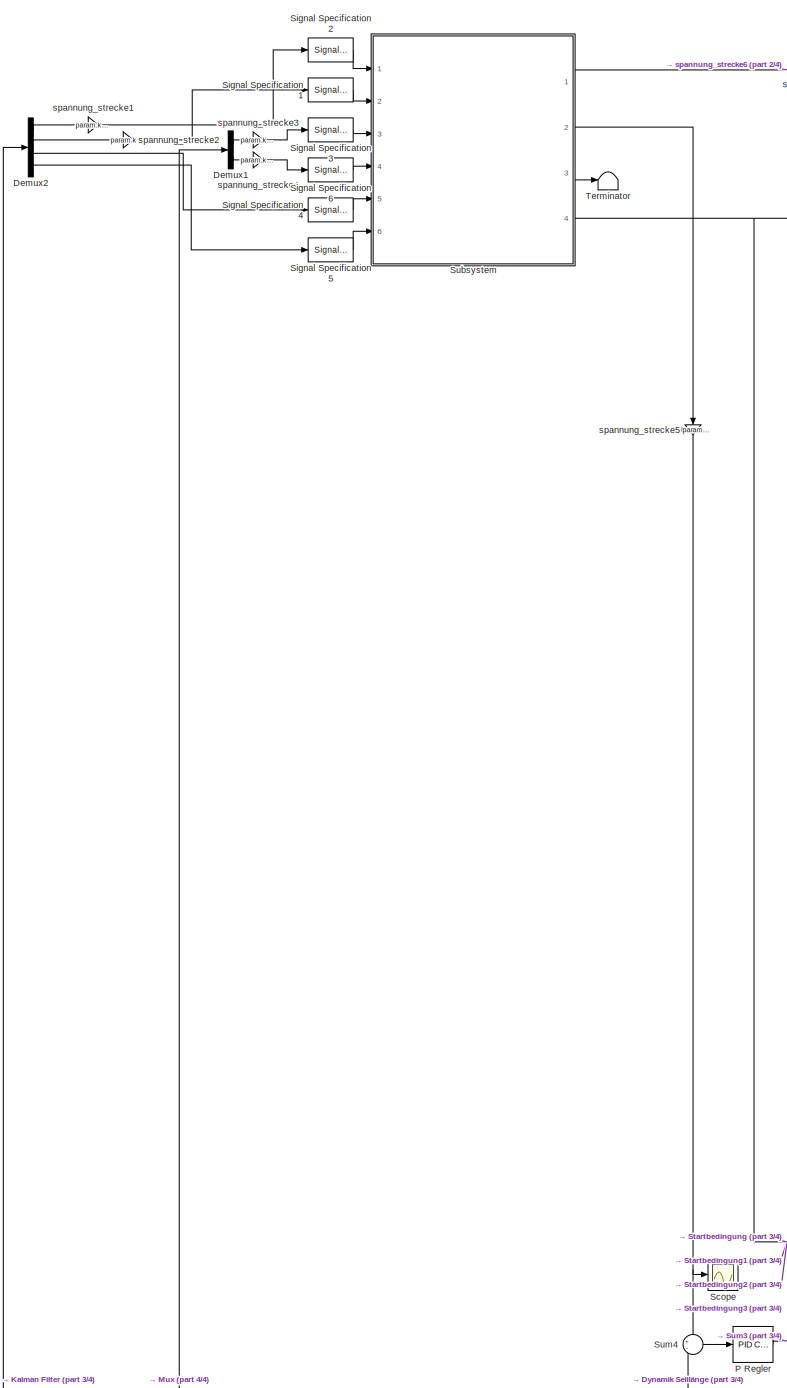
[diagram: root canvas - part 1/4, middle left region]
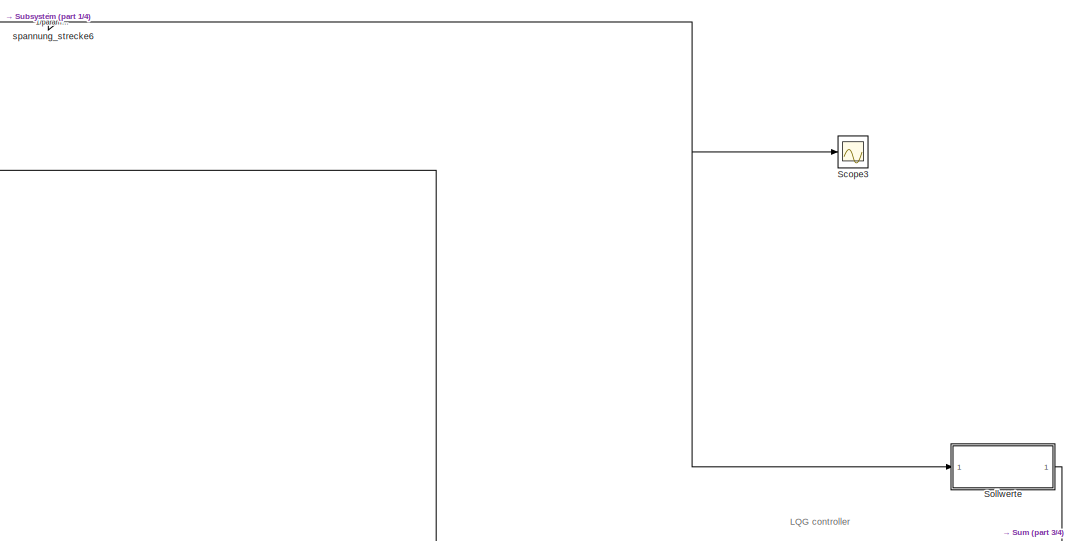
[diagram: root canvas - part 2/4, top center region]
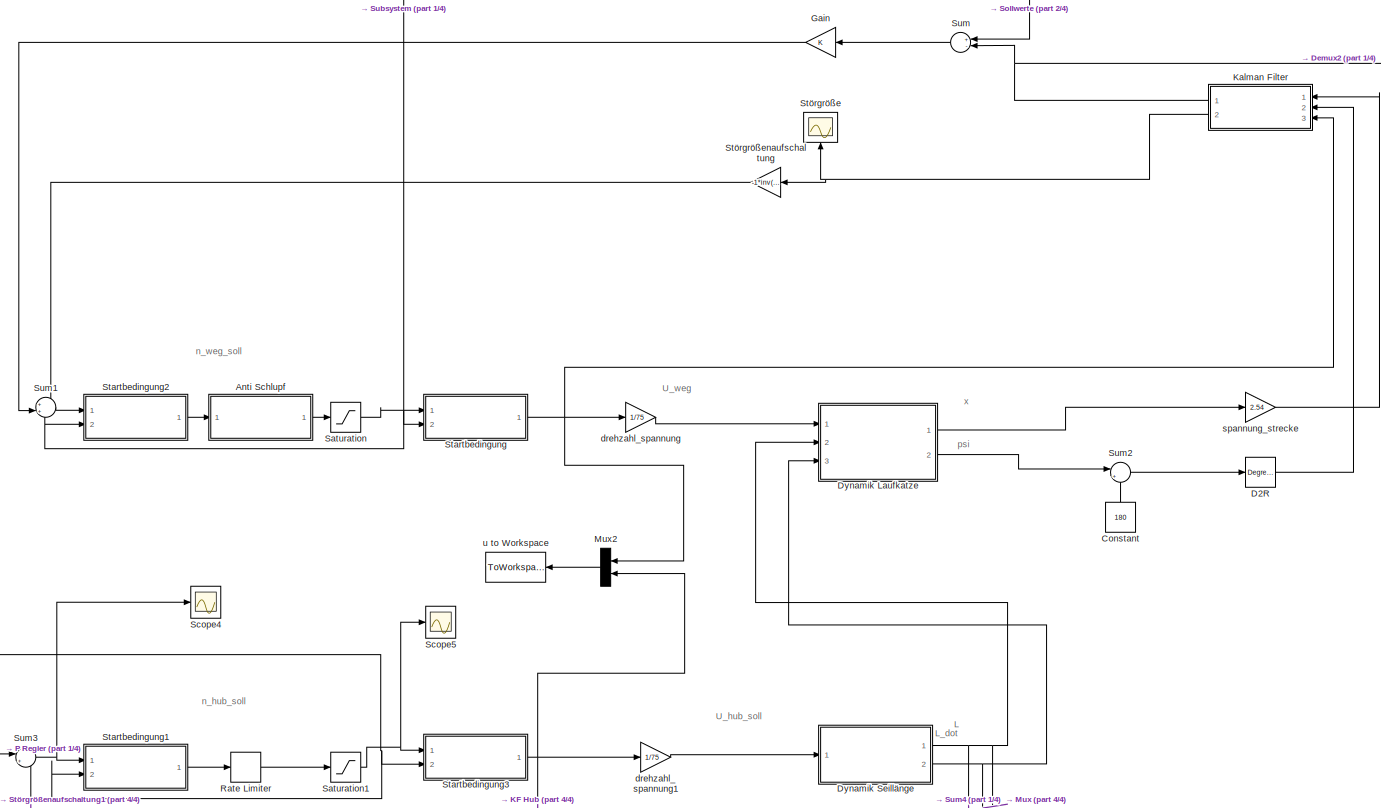
[diagram: root canvas - part 3/4, central region]
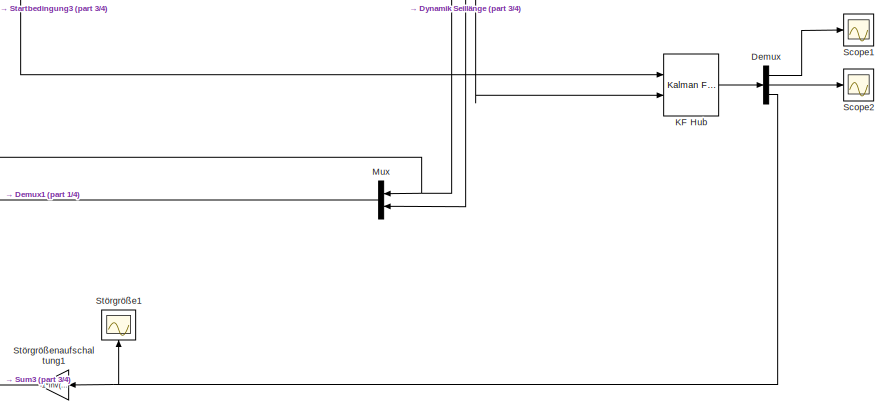
[diagram: root canvas - part 4/4, bottom right region]
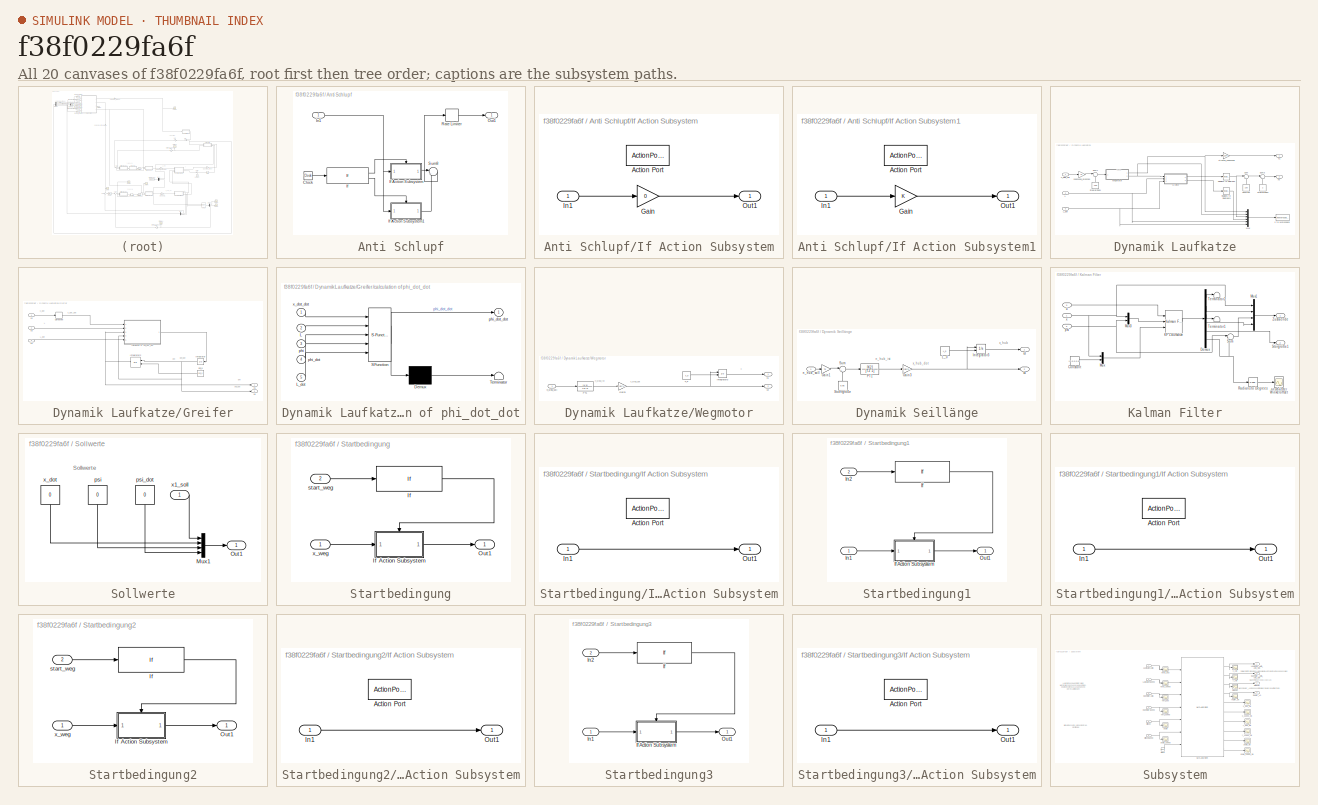
[diagram: thumbnail index - all 20 canvases of the model, root first then tree order]
MODEL slx_f38f0229fa6f
KIND model
CONFIG AbsTol = auto
CONFIG EnableMultiTasking = off
CONFIG FixedStep = auto
CONFIG MaxStep = auto
CONFIG MinStep = auto
CONFIG RelTol = 1e-3
CONFIG SampleTimeConstraint = Unconstrained
CONFIG Solver = VariableStepAuto
CONFIG SolverName = VariableStepAuto
CONFIG StartTime = 0.0
CONFIG StopTime = 120
BLOCK [SubSystem] Anti Schlupf
  Ports = [1, 1]
  RequestExecContextInheritance = off
  Variant = off
BLOCK [Clock] Anti Schlupf/Clock
BLOCK [If] Anti Schlupf/If
  IfExpression = u1 < 0.01
  Ports = [1, 2]
BLOCK [SubSystem] Anti Schlupf/If Action Subsystem
  Ports = [1, 1, 0, 0, 0, 0, 0, 1]
  RequestExecContextInheritance = off
  TreatAsAtomicUnit = on
  Variant = off
BLOCK [ActionPort] Anti Schlupf/If Action Subsystem/Action Port
  ActionType = then
BLOCK [Gain] Anti Schlupf/If Action Subsystem/Gain
  Gain = 0
  OutDataTypeStr = Inherit: Inherit via internal rule
  ParamDataTypeStr = Inherit: Inherit via internal rule
  SaturateOnIntegerOverflow = off
BLOCK [Inport] Anti Schlupf/If Action Subsystem/In1
  IconDisplay = Port number
BLOCK [Outport] Anti Schlupf/If Action Subsystem/Out1
  IconDisplay = Port number
BLOCK [SubSystem] Anti Schlupf/If Action Subsystem1
  Ports = [1, 1, 0, 0, 0, 0, 0, 1]
  RequestExecContextInheritance = off
  TreatAsAtomicUnit = on
  Variant = off
BLOCK [ActionPort] Anti Schlupf/If Action Subsystem1/Action Port
  ActionType = else
BLOCK [Gain] Anti Schlupf/If Action Subsystem1/Gain
  OutDataTypeStr = Inherit: Inherit via internal rule
  ParamDataTypeStr = Inherit: Inherit via internal rule
  SaturateOnIntegerOverflow = off
BLOCK [Inport] Anti Schlupf/If Action Subsystem1/In1
  IconDisplay = Port number
BLOCK [Outport] Anti Schlupf/If Action Subsystem1/Out1
  IconDisplay = Port number
BLOCK [Inport] Anti Schlupf/In1
  IconDisplay = Port number
BLOCK [Outport] Anti Schlupf/Out1
  IconDisplay = Port number
BLOCK [RateLimiter] Anti Schlupf/Rate Limiter
  FallingSlewLimit = -9.57
  RisingSlewLimit = 9.57
  SampleTimeMode = inherited
BLOCK [Sum] Anti Schlupf/Sum8
  IconShape = round
  InputSameDT = off
  Inputs = |++
  OutDataTypeStr = Inherit: Inherit via internal rule
  Ports = [2, 1]
  SaturateOnIntegerOverflow = off
BLOCK [Constant] Constant
  SampleTime = -1
  Value = 180
BLOCK [Reference] D2R  REF=simulink_extras/Transformations/Degrees to
Radians
  Ports = [1, 1]
  SourceBlock = simulink_extras/Transformations/Degrees to\nRadians
  SourceType = DegreesToRadians
BLOCK [Demux] Demux
  DisplayOption = bar
  Outputs = 3
  Ports = [1, 3]
BLOCK [Demux] Demux1
  DisplayOption = bar
  Outputs = 2
  Ports = [1, 2]
BLOCK [Demux] Demux2
  DisplayOption = bar
  Ports = [1, 4]
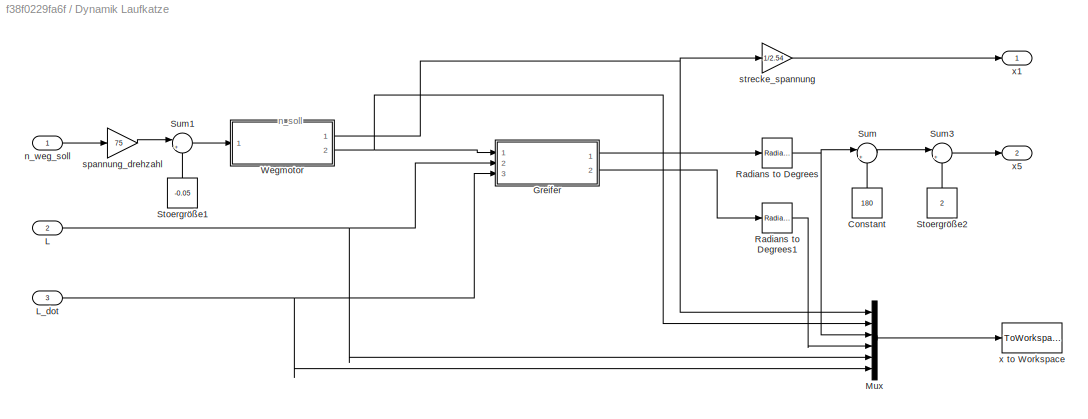
BLOCK [SubSystem] Dynamik Laufkatze
  Ports = [3, 2]
  RequestExecContextInheritance = off
  Variant = off
BLOCK [Constant] Dynamik Laufkatze/Constant
  SampleTime = -1
  Value = 180
BLOCK [SubSystem] Dynamik Laufkatze/Greifer
  Ports = [3, 2]
  RequestExecContextInheritance = off
  Variant = off
BLOCK [Derivative] Dynamik Laufkatze/Greifer/Derivative
BLOCK [Integrator] Dynamik Laufkatze/Greifer/Integrator
  Ports = [1, 1]
BLOCK [Integrator] Dynamik Laufkatze/Greifer/Integrator2
  InitialConditionSource = external
  Ports = [2, 1]
BLOCK [SubSystem] Dynamik Laufkatze/Greifer/calculation of phi_dot_dot
  ErrorFcn = Stateflow.Translate.translate
  PermitHierarchicalResolution = ExplicitOnly
  Ports = [5, 1]
  RequestExecContextInheritance = off
  SFBlockType = MATLAB Function
  TreatAsAtomicUnit = on
  Variant = off
BLOCK [Demux] Dynamik Laufkatze/Greifer/calculation of phi_dot_dot/ Demux 
  DisplayOption = bar
  Outputs = 1
  Ports = [1, 1]
BLOCK [S-Function] Dynamik Laufkatze/Greifer/calculation of phi_dot_dot/ SFunction 
  EnableBusSupport = on
  FunctionName = sf_sfun
  PortCounts = [5 2]
  Ports = [5, 2]
  SFcnIsStateOwnerBlock = off
  SFunctionDeploymentMode = off
  Tag = Stateflow S-Function Riccati_Simulation 2
BLOCK [Terminator] Dynamik Laufkatze/Greifer/calculation of phi_dot_dot/ Terminator 
BLOCK [Inport] Dynamik Laufkatze/Greifer/calculation of phi_dot_dot/L
  IconDisplay = Port number
  Port = 2
BLOCK [Inport] Dynamik Laufkatze/Greifer/calculation of phi_dot_dot/L_dot
  IconDisplay = Port number
  Port = 5
BLOCK [Inport] Dynamik Laufkatze/Greifer/calculation of phi_dot_dot/phi
  IconDisplay = Port number
  Port = 3
BLOCK [Inport] Dynamik Laufkatze/Greifer/calculation of phi_dot_dot/phi_dot
  IconDisplay = Port number
  Port = 4
BLOCK [Outport] Dynamik Laufkatze/Greifer/calculation of phi_dot_dot/phi_dot_dot
  IconDisplay = Port number
BLOCK [Inport] Dynamik Laufkatze/Greifer/calculation of phi_dot_dot/x_dot_dot
  IconDisplay = Port number
BLOCK [Constant] Dynamik Laufkatze/Greifer/phi_0
  SampleTime = -1
  Value = phi_0
BLOCK [Inport] Dynamik Laufkatze/Greifer/x2
  IconDisplay = Port number
BLOCK [Inport] Dynamik Laufkatze/Greifer/x3
  IconDisplay = Port number
  Port = 2
BLOCK [Inport] Dynamik Laufkatze/Greifer/x4
  IconDisplay = Port number
  Port = 3
BLOCK [Outport] Dynamik Laufkatze/Greifer/x5
  IconDisplay = Port number
BLOCK [Outport] Dynamik Laufkatze/Greifer/x6
  IconDisplay = Port number
  Port = 2
BLOCK [Inport] Dynamik Laufkatze/L
  IconDisplay = Port number
  Port = 2
BLOCK [Inport] Dynamik Laufkatze/L_dot
  IconDisplay = Port number
  Port = 3
BLOCK [Mux] Dynamik Laufkatze/Mux
  DisplayOption = bar
  Inputs = 6
  Ports = [6, 1]
BLOCK [Reference] Dynamik Laufkatze/Radians to Degrees  REF=simulink_extras/Transformations/Radians
to Degrees
  Ports = [1, 1]
  SourceBlock = simulink_extras/Transformations/Radians\nto Degrees
  SourceType = RadiansToDegrees
BLOCK [Reference] Dynamik Laufkatze/Radians to Degrees1  REF=simulink_extras/Transformations/Radians
to Degrees
  Ports = [1, 1]
  SourceBlock = simulink_extras/Transformations/Radians\nto Degrees
  SourceType = RadiansToDegrees
BLOCK [Constant] Dynamik Laufkatze/Stoergröße1
  SampleTime = -1
  Value = -0.05
BLOCK [Constant] Dynamik Laufkatze/Stoergröße2
  SampleTime = -1
  Value = 2
BLOCK [Sum] Dynamik Laufkatze/Sum
  IconShape = round
  InputSameDT = off
  Inputs = |++
  OutDataTypeStr = Inherit: Inherit via internal rule
  Ports = [2, 1]
  SaturateOnIntegerOverflow = off
BLOCK [Sum] Dynamik Laufkatze/Sum1
  IconShape = round
  InputSameDT = off
  Inputs = |++
  OutDataTypeStr = Inherit: Inherit via internal rule
  Ports = [2, 1]
  SaturateOnIntegerOverflow = off
BLOCK [Sum] Dynamik Laufkatze/Sum3
  IconShape = round
  InputSameDT = off
  Inputs = |++
  OutDataTypeStr = Inherit: Inherit via internal rule
  Ports = [2, 1]
  SaturateOnIntegerOverflow = off
BLOCK [SubSystem] Dynamik Laufkatze/Wegmotor
  Ports = [1, 2]
  RequestExecContextInheritance = off
  Variant = off
BLOCK [Gain] Dynamik Laufkatze/Wegmotor/Gain3
  Gain = 2*pi*r1/ue1
  OutDataTypeStr = Inherit: Inherit via internal rule
  ParamDataTypeStr = Inherit: Inherit via internal rule
  SaturateOnIntegerOverflow = off
BLOCK [Integrator] Dynamik Laufkatze/Wegmotor/Integrator3
  InitialConditionSource = external
  Ports = [2, 1]
BLOCK [TransferFcn] Dynamik Laufkatze/Wegmotor/PT1
  Denominator = [T1 1]
  Numerator = [K1]
BLOCK [Inport] Dynamik Laufkatze/Wegmotor/n_weg_soll
  IconDisplay = Port number
BLOCK [Outport] Dynamik Laufkatze/Wegmotor/x1
  IconDisplay = Port number
BLOCK [Outport] Dynamik Laufkatze/Wegmotor/x2
  IconDisplay = Port number
  Port = 2
BLOCK [Constant] Dynamik Laufkatze/Wegmotor/x_0
  SampleTime = -1
  Value = x_0
BLOCK [Inport] Dynamik Laufkatze/n_weg_soll
  IconDisplay = Port number
BLOCK [Gain] Dynamik Laufkatze/spannung_drehzahl
  Gain = 75
  OutDataTypeStr = Inherit: Inherit via internal rule
  ParamDataTypeStr = Inherit: Inherit via internal rule
  SaturateOnIntegerOverflow = off
BLOCK [Gain] Dynamik Laufkatze/strecke_spannung
  Gain = 1/2.54
  OutDataTypeStr = Inherit: Inherit via internal rule
  ParamDataTypeStr = Inherit: Inherit via internal rule
  SaturateOnIntegerOverflow = off
BLOCK [ToWorkspace] Dynamik Laufkatze/x to Workspace
  MaxDataPoints = inf
  Ports = [1]
  SampleTime = -1
  Save2DSignal = 3-D array (concatenate along third dimension)
  VariableName = x
BLOCK [Outport] Dynamik Laufkatze/x1
  IconDisplay = Port number
BLOCK [Outport] Dynamik Laufkatze/x5
  IconDisplay = Port number
  Port = 2
BLOCK [SubSystem] Dynamik Seillänge
  Ports = [1, 2]
  RequestExecContextInheritance = off
  Variant = off
BLOCK [Gain] Dynamik Seillänge/Gain1
  Gain = 75
  OutDataTypeStr = Inherit: Inherit via internal rule
  ParamDataTypeStr = Inherit: Inherit via internal rule
  SaturateOnIntegerOverflow = off
BLOCK [Gain] Dynamik Seillänge/Gain3
  Gain = 2*pi*r2/ue2
  OutDataTypeStr = Inherit: Inherit via internal rule
  ParamDataTypeStr = Inherit: Inherit via internal rule
  SaturateOnIntegerOverflow = off
BLOCK [Integrator] Dynamik Seillänge/Integrator3
  InitialConditionSource = external
  Ports = [2, 1]
BLOCK [Constant] Dynamik Seillänge/L_0
  SampleTime = -1
  Value = L_0
BLOCK [TransferFcn] Dynamik Seillänge/PT1
  Denominator = [T2 1]
  Numerator = [K2]
BLOCK [Constant] Dynamik Seillänge/Stoergröße
  SampleTime = -1
  Value = 0.05
BLOCK [Sum] Dynamik Seillänge/Sum
  IconShape = round
  InputSameDT = off
  Inputs = |++
  OutDataTypeStr = Inherit: Inherit via internal rule
  Ports = [2, 1]
  SaturateOnIntegerOverflow = off
BLOCK [Inport] Dynamik Seillänge/n_hub_soll
  IconDisplay = Port number
BLOCK [Outport] Dynamik Seillänge/x3
  IconDisplay = Port number
BLOCK [Outport] Dynamik Seillänge/x4
  IconDisplay = Port number
  Port = 2
BLOCK [Gain] Gain
  Gain = K
  Multiplication = Matrix(K*u) (u vector)
  OutDataTypeStr = Inherit: Inherit via internal rule
  ParamDataTypeStr = Inherit: Inherit via internal rule
  SaturateOnIntegerOverflow = off
BLOCK [Reference] KF Hub  REF=ctrlSharedLib/Kalman Filter
  Ports = [2, 1]
  SourceBlock = ctrlSharedLib/Kalman Filter
  SourceType = ctrlKalmanFilter
BLOCK [SubSystem] Kalman Filter
  Ports = [3, 2]
  RequestExecContextInheritance = off
  Variant = off
BLOCK [Constant] Kalman Filter/Constant
  Value = [0 0 0 0 0]'
BLOCK [Demux] Kalman Filter/Demux
  DisplayOption = bar
  Outputs = 6
  Ports = [1, 6]
BLOCK [Reference] Kalman Filter/KF Laufkatze  REF=ctrlSharedLib/Kalman Filter
  Ports = [3, 1]
  SourceBlock = ctrlSharedLib/Kalman Filter
  SourceType = ctrlKalmanFilter
BLOCK [Mux] Kalman Filter/Mux
  DisplayOption = bar
  Inputs = 2
  Ports = [2, 1]
BLOCK [Mux] Kalman Filter/Mux1
  DisplayOption = bar
  Ports = [4, 1]
BLOCK [Mux] Kalman Filter/Mux3
  DisplayOption = bar
  Inputs = 2
  Ports = [2, 1]
BLOCK [Reference] Kalman Filter/Radians to Degrees  REF=simulink_extras/Transformations/Radians
to Degrees
  Ports = [1, 1]
  SourceBlock = simulink_extras/Transformations/Radians\nto Degrees
  SourceType = RadiansToDegrees
BLOCK [Outport] Kalman Filter/Störgröße1
  IconDisplay = Port number
  Port = 2
BLOCK [Sum] Kalman Filter/Sum
  IconShape = round
  InputSameDT = off
  Inputs = |+-
  OutDataTypeStr = Inherit: Inherit via internal rule
  Ports = [2, 1]
  SaturateOnIntegerOverflow = off
BLOCK [Terminator] Kalman Filter/Terminator1
BLOCK [Terminator] Kalman Filter/Terminator2
BLOCK [Outport] Kalman Filter/Zustaende
  IconDisplay = Port number
BLOCK [Scope] Kalman Filter/geschätzter Winkeloffset
  NumInputPorts = 1
  Ports = [1]
  ScopeSpecificationString = Simulink.scopes.TimeScopeBlockCfg('CurrentConfiguration', extmgr.ConfigurationSet(extmgr.Configuration('Core','General UI',true),extmgr.Configuration('Core','Source UI',true),extmgr.Configuration('Sources','WiredSimulink',true,'DataLoggingVariableName','ScopeData1'),extmgr.Configuration('Visuals','Time Domain',true,'SerializedDisplays',{struct('MinYLimReal','-0.34725','MaxYLimReal','3.12526','YLab...<+1429ch>
BLOCK [Inport] Kalman Filter/psi
  IconDisplay = Port number
  Port = 2
BLOCK [Inport] Kalman Filter/u
  IconDisplay = Port number
  Port = 3
BLOCK [Inport] Kalman Filter/x
  IconDisplay = Port number
BLOCK [Mux] Mux
  DisplayOption = bar
  Inputs = 2
  Ports = [2, 1]
BLOCK [Mux] Mux2
  DisplayOption = bar
  Inputs = 2
  Ports = [2, 1]
BLOCK [Reference] P Regler  REF=simulink/Continuous/PID Controller
  Ports = [1, 1]
  SourceBlock = simulink/Continuous/PID Controller
  SourceType = PID 1dof
BLOCK [RateLimiter] Rate Limiter
  FallingSlewLimit = -17
  RisingSlewLimit = 17
  SampleTimeMode = inherited
BLOCK [Saturate] Saturation
  InputPortMap = u0
  LowerLimit = -75
  Ports = [1, 1]
  UpperLimit = 75
BLOCK [Saturate] Saturation1
  InputPortMap = u0
  LowerLimit = -75
  Ports = [1, 1]
  UpperLimit = 75
BLOCK [Scope] Scope
  NumInputPorts = 1
  Ports = [1]
  ScopeSpecificationString = Simulink.scopes.TimeScopeBlockCfg('CurrentConfiguration', extmgr.ConfigurationSet(extmgr.Configuration('Core','General UI',true),extmgr.Configuration('Core','Source UI',true),extmgr.Configuration('Sources','WiredSimulink',true,'DataLoggingVariableName','ScopeData1'),extmgr.Configuration('Visuals','Time Domain',true,'SerializedDisplays',{struct('MinYLimReal','0.98778','MaxYLimReal','0.98916','YLabe...<+1445ch>
BLOCK [Scope] Scope1
  NumInputPorts = 1
  Ports = [1]
  ScopeSpecificationString = Simulink.scopes.TimeScopeBlockCfg('CurrentConfiguration', extmgr.ConfigurationSet(extmgr.Configuration('Core','General UI',true),extmgr.Configuration('Core','Source UI',true),extmgr.Configuration('Sources','WiredSimulink',true,'DataLoggingVariableName','ScopeData2'),extmgr.Configuration('Visuals','Time Domain',true,'SerializedDisplays',{struct('MinYLimReal','-0.22724','MaxYLimReal','0.83919','YLab...<+1417ch>
BLOCK [Scope] Scope2
  NumInputPorts = 1
  Ports = [1]
  ScopeSpecificationString = Simulink.scopes.TimeScopeBlockCfg('CurrentConfiguration', extmgr.ConfigurationSet(extmgr.Configuration('Core','General UI',true),extmgr.Configuration('Core','Source UI',true),extmgr.Configuration('Sources','WiredSimulink',true,'DataLoggingVariableName','ScopeData3'),extmgr.Configuration('Visuals','Time Domain',true,'SerializedDisplays',{struct('MinYLimReal','-0.44023','MaxYLimReal','0.46071','YLab...<+1419ch>
BLOCK [Scope] Scope3
  NumInputPorts = 1
  Ports = [1]
  ScopeSpecificationString = Simulink.scopes.TimeScopeBlockCfg('CurrentConfiguration', extmgr.ConfigurationSet(extmgr.Configuration('Core','General UI',true),extmgr.Configuration('Core','Source UI',true),extmgr.Configuration('Sources','WiredSimulink',true,'DataLoggingVariableName','ScopeData18'),extmgr.Configuration('Visuals','Time Domain',true,'SerializedDisplays',{struct('MinYLimReal','0.70992','MaxYLimReal','0.71003','YLab...<+1446ch>
BLOCK [Scope] Scope4
  NumInputPorts = 1
  Ports = [1]
  ScopeSpecificationString = Simulink.scopes.TimeScopeBlockCfg('CurrentConfiguration', extmgr.ConfigurationSet(extmgr.Configuration('Core','General UI',true),extmgr.Configuration('Core','Source UI',true),extmgr.Configuration('Sources','WiredSimulink',true,'DataLoggingVariableName','ScopeData19'),extmgr.Configuration('Visuals','Time Domain',true,'SerializedDisplays',{struct('MinYLimReal','-47.86745','MaxYLimReal','38.1764','YL...<+1421ch>
BLOCK [Scope] Scope5
  NumInputPorts = 1
  Ports = [1]
  ScopeSpecificationString = Simulink.scopes.TimeScopeBlockCfg('CurrentConfiguration', extmgr.ConfigurationSet(extmgr.Configuration('Core','General UI',true),extmgr.Configuration('Core','Source UI',true),extmgr.Configuration('Sources','WiredSimulink',true,'DataLoggingVariableName','ScopeData20'),extmgr.Configuration('Visuals','Time Domain',true,'SerializedDisplays',{struct('MinYLimReal','-26.57912','MaxYLimReal','23.27132','Y...<+1432ch>
BLOCK [SignalSpecification] Signal Specification1
  Dimensions = 1
BLOCK [SignalSpecification] Signal Specification2
  Dimensions = 1
BLOCK [SignalSpecification] Signal Specification3
  Dimensions = 1
BLOCK [SignalSpecification] Signal Specification4
  Dimensions = 1
BLOCK [SignalSpecification] Signal Specification5
  Dimensions = 1
BLOCK [SignalSpecification] Signal Specification6
  Dimensions = 1
BLOCK [SubSystem] Sollwerte
  Ports = [1, 1]
  RequestExecContextInheritance = off
  Variant = off
BLOCK [Mux] Sollwerte/Mux1
  DisplayOption = bar
  Ports = [4, 1]
BLOCK [Outport] Sollwerte/Out1
  IconDisplay = Port number
BLOCK [Constant] Sollwerte/psi
  Value = 0
BLOCK [Constant] Sollwerte/psi_dot
  Value = 0
BLOCK [Inport] Sollwerte/x1_soll
  IconDisplay = Port number
BLOCK [Constant] Sollwerte/x_dot
  Value = 0
BLOCK [SubSystem] Startbedingung
  Ports = [2, 1]
  RequestExecContextInheritance = off
  Variant = off
BLOCK [If] Startbedingung/If
  IfExpression = u1 == 1
  Ports = [1, 1]
  ShowElse = off
BLOCK [SubSystem] Startbedingung/If Action Subsystem
  Ports = [1, 1, 0, 0, 0, 0, 0, 1]
  RequestExecContextInheritance = off
  TreatAsAtomicUnit = on
  Variant = off
BLOCK [ActionPort] Startbedingung/If Action Subsystem/Action Port
  ActionType = then
BLOCK [Inport] Startbedingung/If Action Subsystem/In1
  IconDisplay = Port number
BLOCK [Outport] Startbedingung/If Action Subsystem/Out1
  IconDisplay = Port number
BLOCK [Outport] Startbedingung/Out1
  IconDisplay = Port number
BLOCK [Inport] Startbedingung/start_weg
  IconDisplay = Port number
  Port = 2
BLOCK [Inport] Startbedingung/x_weg
  IconDisplay = Port number
BLOCK [SubSystem] Startbedingung1
  Ports = [2, 1]
  RequestExecContextInheritance = off
  Variant = off
BLOCK [If] Startbedingung1/If
  IfExpression = u1 == 1
  Ports = [1, 1]
  ShowElse = off
BLOCK [SubSystem] Startbedingung1/If Action Subsystem
  Ports = [1, 1, 0, 0, 0, 0, 0, 1]
  RequestExecContextInheritance = off
  TreatAsAtomicUnit = on
  Variant = off
BLOCK [ActionPort] Startbedingung1/If Action Subsystem/Action Port
  ActionType = then
BLOCK [Inport] Startbedingung1/If Action Subsystem/In1
  IconDisplay = Port number
BLOCK [Outport] Startbedingung1/If Action Subsystem/Out1
  IconDisplay = Port number
BLOCK [Inport] Startbedingung1/In1
  IconDisplay = Port number
BLOCK [Inport] Startbedingung1/In2
  IconDisplay = Port number
  Port = 2
BLOCK [Outport] Startbedingung1/Out1
  IconDisplay = Port number
BLOCK [SubSystem] Startbedingung2
  Ports = [2, 1]
  RequestExecContextInheritance = off
  Variant = off
BLOCK [If] Startbedingung2/If
  IfExpression = u1 == 1
  Ports = [1, 1]
  ShowElse = off
BLOCK [SubSystem] Startbedingung2/If Action Subsystem
  Ports = [1, 1, 0, 0, 0, 0, 0, 1]
  RequestExecContextInheritance = off
  TreatAsAtomicUnit = on
  Variant = off
BLOCK [ActionPort] Startbedingung2/If Action Subsystem/Action Port
  ActionType = then
BLOCK [Inport] Startbedingung2/If Action Subsystem/In1
  IconDisplay = Port number
BLOCK [Outport] Startbedingung2/If Action Subsystem/Out1
  IconDisplay = Port number
BLOCK [Outport] Startbedingung2/Out1
  IconDisplay = Port number
BLOCK [Inport] Startbedingung2/start_weg
  IconDisplay = Port number
  Port = 2
BLOCK [Inport] Startbedingung2/x_weg
  IconDisplay = Port number
BLOCK [SubSystem] Startbedingung3
  Ports = [2, 1]
  RequestExecContextInheritance = off
  Variant = off
BLOCK [If] Startbedingung3/If
  IfExpression = u1 == 1
  Ports = [1, 1]
  ShowElse = off
BLOCK [SubSystem] Startbedingung3/If Action Subsystem
  Ports = [1, 1, 0, 0, 0, 0, 0, 1]
  RequestExecContextInheritance = off
  TreatAsAtomicUnit = on
  Variant = off
BLOCK [ActionPort] Startbedingung3/If Action Subsystem/Action Port
  ActionType = then
BLOCK [Inport] Startbedingung3/If Action Subsystem/In1
  IconDisplay = Port number
BLOCK [Outport] Startbedingung3/If Action Subsystem/Out1
  IconDisplay = Port number
BLOCK [Inport] Startbedingung3/In1
  IconDisplay = Port number
BLOCK [Inport] Startbedingung3/In2
  IconDisplay = Port number
  Port = 2
BLOCK [Outport] Startbedingung3/Out1
  IconDisplay = Port number
BLOCK [Scope] Störgröße
  NumInputPorts = 1
  Ports = [1]
  ScopeSpecificationString = Simulink.scopes.TimeScopeBlockCfg('CurrentConfiguration', extmgr.ConfigurationSet(extmgr.Configuration('Core','General UI',true),extmgr.Configuration('Core','Source UI',true),extmgr.Configuration('Sources','WiredSimulink',true,'DataLoggingVariableName','ScopeData1'),extmgr.Configuration('Visuals','Time Domain',true,'SerializedDisplays',{struct('MinYLimReal','-0.05812','MaxYLimReal','0.00646','YLab...<+1445ch>
BLOCK [Scope] Störgröße1
  NumInputPorts = 1
  Ports = [1]
  ScopeSpecificationString = Simulink.scopes.TimeScopeBlockCfg('CurrentConfiguration', extmgr.ConfigurationSet(extmgr.Configuration('Core','General UI',true),extmgr.Configuration('Core','Source UI',true),extmgr.Configuration('Sources','WiredSimulink',true,'DataLoggingVariableName','ScopeData1'),extmgr.Configuration('Visuals','Time Domain',true,'SerializedDisplays',{struct('MinYLimReal','-0.01442','MaxYLimReal','0.12974','YLab...<+1438ch>
BLOCK [Gain] Störgrößenaufschaltung
  Gain = -1*inv(B1'*B1)*B1'*E1
  Multiplication = Matrix(K*u)
  OutDataTypeStr = Inherit: Inherit via internal rule
  ParamDataTypeStr = Inherit: Inherit via internal rule
  SaturateOnIntegerOverflow = off
BLOCK [Gain] Störgrößenaufschaltung1
  Gain = -1*inv(B2'*B2)*B2'*E2
  Multiplication = Matrix(K*u)
  OutDataTypeStr = Inherit: Inherit via internal rule
  ParamDataTypeStr = Inherit: Inherit via internal rule
  SaturateOnIntegerOverflow = off
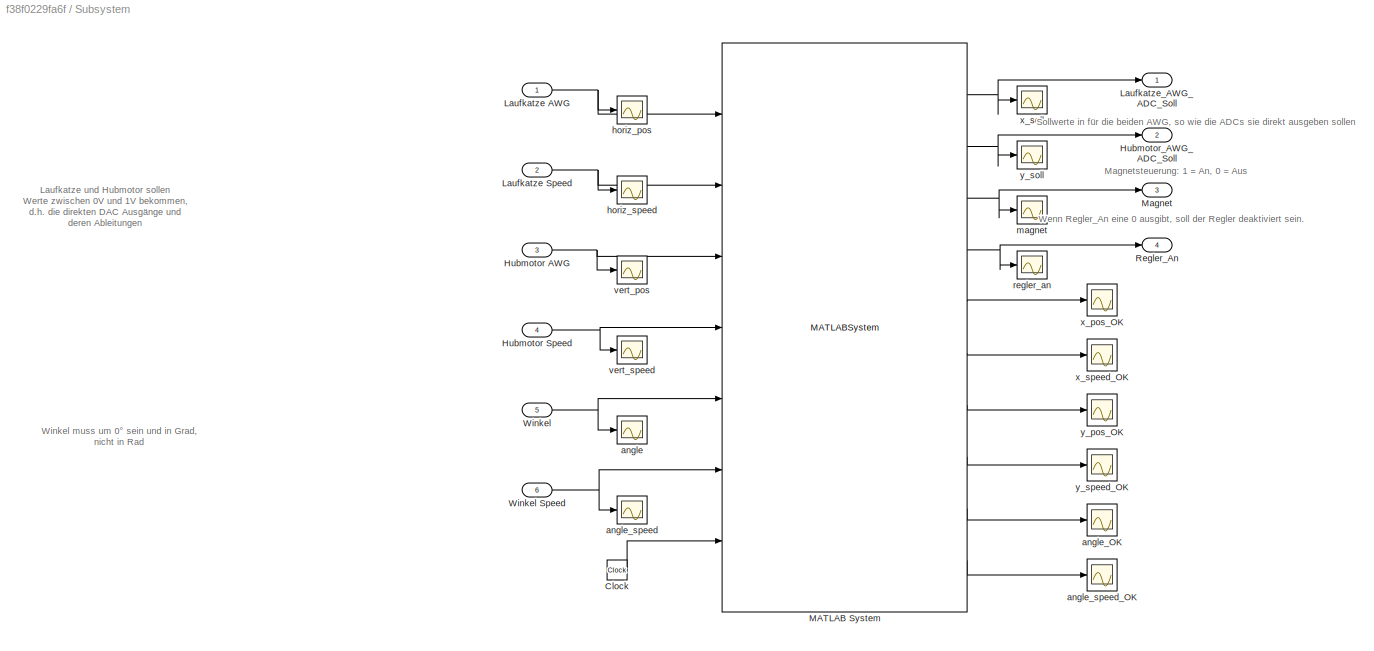
BLOCK [SubSystem] Subsystem
  Ports = [6, 4]
  RequestExecContextInheritance = off
  Variant = off
BLOCK [Clock] Subsystem/Clock
BLOCK [Inport] Subsystem/Hubmotor AWG
  IconDisplay = Port number
  OutDataTypeStr = double
  OutMax = 1
  OutMin = 0
  Port = 3
  PortDimensions = 1
  SignalType = real
BLOCK [Inport] Subsystem/Hubmotor Speed
  IconDisplay = Port number
  OutDataTypeStr = double
  Port = 4
  SignalType = real
BLOCK [Outport] Subsystem/Hubmotor_AWG_ADC_Soll
  IconDisplay = Port number
  Port = 2
BLOCK [Inport] Subsystem/Laufkatze AWG
  IconDisplay = Port number
  OutDataTypeStr = double
  OutMax = 1
  OutMin = 0
  PortDimensions = 1
  SignalType = real
BLOCK [Inport] Subsystem/Laufkatze Speed
  IconDisplay = Port number
  OutDataTypeStr = double
  Port = 2
  SignalType = real
BLOCK [Outport] Subsystem/Laufkatze_AWG_ADC_Soll
  IconDisplay = Port number
BLOCK [MATLABSystem] Subsystem/MATLAB System
  MaskDisplay = disp('Steuerung_Automatisierung');\nport_label('input',1,'horiz_pos');\nport_label('input',2,'horiz_speed');\nport_label('input',3,'vert_pos');\nport_label('input',4,'vert_speed');\nport_label('input',5,'angle');\nport_label('input',6,'angle_speed');\nport_label('input',7,'Clock');\nport_label('output',1,'horiz_setpoint');\nport_label('output',2,'vert_setpoint');\nport_label('output',3,'magnet_on');\nport_la...<+300ch>
  MaskType = Steuerung_Automatisierung
  Ports = [7, 10]
  SimulateUsing = Code generation
  System = Steuerung_Automatisierung
  add_midpoints = true
  midpoint_height = 35
  param = param
  start_time = 10
BLOCK [Outport] Subsystem/Magnet
  IconDisplay = Port number
  Port = 3
BLOCK [Outport] Subsystem/Regler_An
  IconDisplay = Port number
  Port = 4
BLOCK [Inport] Subsystem/Winkel
  IconDisplay = Port number
  OutDataTypeStr = double
  OutMax = 360
  OutMin = 0
  Port = 5
  PortDimensions = 1
  SignalType = real
BLOCK [Inport] Subsystem/Winkel  Speed
  IconDisplay = Port number
  OutDataTypeStr = double
  Port = 6
  SignalType = real
BLOCK [Scope] Subsystem/angle
  NumInputPorts = 1
  Ports = [1]
  ScopeSpecificationString = C++SS(StrPVP('SaveName','ScopeData'),StrPVP('SaveName','ScopeData10'),StrPVP('SaveName','ScopeData12'),StrPVP('SaveName','ScopeData14'),StrPVP('LimitDataPoints','on'),StrPVP('DataFormat','Array'),StrPVP('Decimation','1'),StrPVP('BlockParamSampleInput','off'),StrPVP('SaveName','ScopeData2'))
BLOCK [Scope] Subsystem/angle_OK
  NumInputPorts = 1
  Ports = [1]
  ScopeSpecificationString = C++SS(StrPVP('SaveName','ScopeData3'),StrPVP('LimitDataPoints','on'),StrPVP('DataFormat','Array'),StrPVP('Decimation','1'),StrPVP('BlockParamSampleInput','off'))
BLOCK [Scope] Subsystem/angle_speed
  NumInputPorts = 1
  Ports = [1]
  ScopeSpecificationString = C++SS(StrPVP('SaveName','ScopeData'),StrPVP('SaveName','ScopeData10'),StrPVP('SaveName','ScopeData12'),StrPVP('SaveName','ScopeData14'),StrPVP('SaveName','ScopeData15'),StrPVP('LimitDataPoints','on'),StrPVP('DataFormat','Array'),StrPVP('Decimation','1'),StrPVP('BlockParamSampleInput','off'),StrPVP('SaveName','ScopeData4'))
BLOCK [Scope] Subsystem/angle_speed_OK
  NumInputPorts = 1
  Ports = [1]
  ScopeSpecificationString = C++SS(StrPVP('SaveName','ScopeData9'),StrPVP('LimitDataPoints','on'),StrPVP('DataFormat','Array'),StrPVP('Decimation','1'),StrPVP('BlockParamSampleInput','off'),StrPVP('SaveName','ScopeData5'))
BLOCK [Scope] Subsystem/horiz_pos
  NumInputPorts = 1
  Ports = [1]
  ScopeSpecificationString = Simulink.scopes.TimeScopeBlockCfg('CurrentConfiguration', extmgr.ConfigurationSet(extmgr.Configuration('Core','General UI',true),extmgr.Configuration('Core','Source UI',true),extmgr.Configuration('Sources','WiredSimulink',true,'DataLoggingVariableName','ScopeData10','DataLoggingLimitDataPoints',true,'DataLoggingSaveFormat','Array','DataLoggingDecimation','1','DataLoggingDecimateData',true),extmgr....<+1464ch>
BLOCK [Scope] Subsystem/horiz_speed
  NumInputPorts = 1
  Ports = [1]
  ScopeSpecificationString = C++SS(StrPVP('SaveName','ScopeData'),StrPVP('SaveName','ScopeData10'),StrPVP('SaveName','ScopeData11'),StrPVP('LimitDataPoints','on'),StrPVP('DataFormat','Array'),StrPVP('Decimation','1'),StrPVP('BlockParamSampleInput','off'),StrPVP('SaveName','ScopeData6'))
BLOCK [Scope] Subsystem/magnet
  NumInputPorts = 1
  Ports = [1]
  ScopeSpecificationString = C++SS(StrPVP('SaveName','ScopeData7'),StrPVP('LimitDataPoints','on'),StrPVP('DataFormat','Array'),StrPVP('Decimation','1'),StrPVP('BlockParamSampleInput','off'))
BLOCK [Scope] Subsystem/regler_an
  NumInputPorts = 1
  Ports = [1]
  ScopeSpecificationString = C++SS(StrPVP('SaveName','ScopeData'),StrPVP('SaveName','ScopeData1'),StrPVP('SaveName','ScopeData2'),StrPVP('SaveName','ScopeData3'),StrPVP('LimitDataPoints','on'),StrPVP('DataFormat','Array'),StrPVP('Decimation','1'),StrPVP('BlockParamSampleInput','off'),StrPVP('SaveName','ScopeData8'))
BLOCK [Scope] Subsystem/vert_pos
  NumInputPorts = 1
  Ports = [1]
  ScopeSpecificationString = Simulink.scopes.TimeScopeBlockCfg('CurrentConfiguration', extmgr.ConfigurationSet(extmgr.Configuration('Core','General UI',true),extmgr.Configuration('Core','Source UI',true),extmgr.Configuration('Sources','WiredSimulink',true,'DataLoggingVariableName','ScopeData9','DataLoggingLimitDataPoints',true,'DataLoggingSaveFormat','Array','DataLoggingDecimation','1','DataLoggingDecimateData',true),extmgr.C...<+1546ch>
BLOCK [Scope] Subsystem/vert_speed
  NumInputPorts = 1
  Ports = [1]
  ScopeSpecificationString = C++SS(StrPVP('SaveName','ScopeData'),StrPVP('SaveName','ScopeData10'),StrPVP('SaveName','ScopeData12'),StrPVP('SaveName','ScopeData13'),StrPVP('LimitDataPoints','on'),StrPVP('DataFormat','Array'),StrPVP('Decimation','1'),StrPVP('BlockParamSampleInput','off'),StrPVP('SaveName','ScopeData11'))
BLOCK [Scope] Subsystem/x_pos_OK
  NumInputPorts = 1
  Ports = [1]
  ScopeSpecificationString = Simulink.scopes.TimeScopeBlockCfg('CurrentConfiguration', extmgr.ConfigurationSet(extmgr.Configuration('Core','General UI',true),extmgr.Configuration('Core','Source UI',true),extmgr.Configuration('Sources','WiredSimulink',true,'DataLoggingVariableName','ScopeData12'),extmgr.Configuration('Visuals','Time Domain',true,'SerializedDisplays',{struct('MinYLimReal','-0.125','MaxYLimReal','1.125','YLabelR...<+1417ch>
BLOCK [Scope] Subsystem/x_soll
  NumInputPorts = 1
  Ports = [1]
  ScopeSpecificationString = C++SS(StrPVP('SaveName','ScopeData'),StrPVP('LimitDataPoints','on'),StrPVP('DataFormat','Array'),StrPVP('Decimation','1'),StrPVP('BlockParamSampleInput','off'),StrPVP('SaveName','ScopeData13'))
BLOCK [Scope] Subsystem/x_speed_OK
  NumInputPorts = 1
  Ports = [1]
  ScopeSpecificationString = Simulink.scopes.TimeScopeBlockCfg('CurrentConfiguration', extmgr.ConfigurationSet(extmgr.Configuration('Core','General UI',true),extmgr.Configuration('Core','Source UI',true),extmgr.Configuration('Sources','WiredSimulink',true,'DataLoggingVariableName','ScopeData14','DataLoggingLimitDataPoints',true,'DataLoggingSaveFormat','Array','DataLoggingDecimation','1','DataLoggingDecimateData',true),extmgr....<+1513ch>
BLOCK [Scope] Subsystem/y_pos_OK
  NumInputPorts = 1
  Ports = [1]
  ScopeSpecificationString = Simulink.scopes.TimeScopeBlockCfg('CurrentConfiguration', extmgr.ConfigurationSet(extmgr.Configuration('Core','General UI',true),extmgr.Configuration('Core','Source UI',true),extmgr.Configuration('Sources','WiredSimulink',true,'DataLoggingVariableName','ScopeData15','DataLoggingLimitDataPoints',true,'DataLoggingSaveFormat','Array','DataLoggingDecimation','1','DataLoggingDecimateData',true),extmgr....<+1543ch>
BLOCK [Scope] Subsystem/y_soll
  NumInputPorts = 1
  Ports = [1]
  ScopeSpecificationString = C++SS(StrPVP('SaveName','ScopeData'),StrPVP('SaveName','ScopeData1'),StrPVP('LimitDataPoints','on'),StrPVP('DataFormat','Array'),StrPVP('Decimation','1'),StrPVP('BlockParamSampleInput','off'),StrPVP('SaveName','ScopeData16'))
BLOCK [Scope] Subsystem/y_speed_OK
  NumInputPorts = 1
  Ports = [1]
  ScopeSpecificationString = C++SS(StrPVP('SaveName','ScopeData7'),StrPVP('LimitDataPoints','on'),StrPVP('DataFormat','Array'),StrPVP('Decimation','1'),StrPVP('BlockParamSampleInput','off'),StrPVP('SaveName','ScopeData17'))
BLOCK [Sum] Sum
  IconShape = round
  InputSameDT = off
  Inputs = +-|
  OutDataTypeStr = Inherit: Inherit via internal rule
  Ports = [2, 1]
  SaturateOnIntegerOverflow = off
BLOCK [Sum] Sum1
  IconShape = round
  InputSameDT = off
  Inputs = ++|
  OutDataTypeStr = Inherit: Inherit via internal rule
  Ports = [2, 1]
  SaturateOnIntegerOverflow = off
BLOCK [Sum] Sum2
  IconShape = round
  InputSameDT = off
  Inputs = |+-
  OutDataTypeStr = Inherit: Inherit via internal rule
  Ports = [2, 1]
  SaturateOnIntegerOverflow = off
BLOCK [Sum] Sum3
  IconShape = round
  InputSameDT = off
  Inputs = |++
  OutDataTypeStr = Inherit: Inherit via internal rule
  Ports = [2, 1]
  SaturateOnIntegerOverflow = off
BLOCK [Sum] Sum4
  IconShape = round
  InputSameDT = off
  Inputs = +-
  OutDataTypeStr = Inherit: Inherit via internal rule
  Ports = [2, 1]
  SaturateOnIntegerOverflow = off
BLOCK [Terminator] Terminator
BLOCK [Gain] drehzahl_spannung
  Gain = 1/75
  OutDataTypeStr = Inherit: Inherit via internal rule
  ParamDataTypeStr = Inherit: Inherit via internal rule
  SaturateOnIntegerOverflow = off
BLOCK [Gain] drehzahl_spannung1
  Gain = 1/75
  OutDataTypeStr = Inherit: Inherit via internal rule
  ParamDataTypeStr = Inherit: Inherit via internal rule
  SaturateOnIntegerOverflow = off
BLOCK [Gain] spannung_strecke
  Gain = 2.54
  OutDataTypeStr = Inherit: Inherit via internal rule
  ParamDataTypeStr = Inherit: Inherit via internal rule
  SaturateOnIntegerOverflow = off
BLOCK [Gain] spannung_strecke1
  Gain = param.k_AWG_K
  OutDataTypeStr = Inherit: Inherit via internal rule
  ParamDataTypeStr = Inherit: Inherit via internal rule
  SaturateOnIntegerOverflow = off
BLOCK [Gain] spannung_strecke2
  Gain = param.k_AWG_K
  OutDataTypeStr = Inherit: Inherit via internal rule
  ParamDataTypeStr = Inherit: Inherit via internal rule
  SaturateOnIntegerOverflow = off
BLOCK [Gain] spannung_strecke3
  Gain = param.k_AWG_G
  OutDataTypeStr = Inherit: Inherit via internal rule
  ParamDataTypeStr = Inherit: Inherit via internal rule
  SaturateOnIntegerOverflow = off
BLOCK [Gain] spannung_strecke4
  Gain = param.k_AWG_G
  OutDataTypeStr = Inherit: Inherit via internal rule
  ParamDataTypeStr = Inherit: Inherit via internal rule
  SaturateOnIntegerOverflow = off
BLOCK [Gain] spannung_strecke5
  Gain = 1/param.k_AWG_G
  OutDataTypeStr = Inherit: Inherit via internal rule
  ParamDataTypeStr = Inherit: Inherit via internal rule
  SaturateOnIntegerOverflow = off
BLOCK [Gain] spannung_strecke6
  Gain = 1/param.k_AWG_K
  OutDataTypeStr = Inherit: Inherit via internal rule
  ParamDataTypeStr = Inherit: Inherit via internal rule
  SaturateOnIntegerOverflow = off
BLOCK [ToWorkspace] u to Workspace
  MaxDataPoints = inf
  Ports = [1]
  SampleTime = -1
  Save2DSignal = 3-D array (concatenate along third dimension)
  VariableName = u
ANNOTATION (root): L
ANNOTATION (root): LQG controller
ANNOTATION (root): L_dot
ANNOTATION (root): U_hub_soll
ANNOTATION (root): U_weg
ANNOTATION (root): n_hub_soll
ANNOTATION (root): n_weg_soll
ANNOTATION (root): psi
ANNOTATION (root): x
ANNOTATION Dynamik Laufkatze: n_soll
ANNOTATION Dynamik Laufkatze/Greifer: L
ANNOTATION Dynamik Laufkatze/Greifer: L_dot
ANNOTATION Dynamik Laufkatze/Greifer: phi
ANNOTATION Dynamik Laufkatze/Greifer: phi_dot
ANNOTATION Dynamik Laufkatze/Greifer: x_dot
ANNOTATION Dynamik Laufkatze/Greifer: x_dot_dot
ANNOTATION Dynamik Laufkatze/Wegmotor: n_weg_ist
ANNOTATION Dynamik Laufkatze/Wegmotor: x
ANNOTATION Dynamik Laufkatze/Wegmotor: x_weg_dot
ANNOTATION Dynamik Seillänge: n_hub_ist
ANNOTATION Dynamik Seillänge: x_hub
ANNOTATION Dynamik Seillänge: x_hub_dot
ANNOTATION Sollwerte: Sollwerte
ANNOTATION Subsystem: Winkel muss um 0° sein und in Grad, nicht in Rad
ANNOTATION Subsystem: Laufkatze und Hubmotor sollen Werte zwischen 0V und 1V bekommen, d.h. die direkten DAC Ausgänge und deren Ableitungen
ANNOTATION Subsystem: Magnetsteuerung: 1 = An, 0 = Aus
ANNOTATION Subsystem: Sollwerte in für die beiden AWG, so wie die ADCs sie direkt ausgeben sollen
ANNOTATION Subsystem: Wenn Regler_An eine 0 ausgibt, soll der Regler deaktiviert sein.
LINE Anti Schlupf/Clock:1 -> Anti Schlupf/If:1
LINE Anti Schlupf/If Action Subsystem/Gain:1 -> Anti Schlupf/If Action Subsystem/Out1:1
LINE Anti Schlupf/If Action Subsystem/In1:1 -> Anti Schlupf/If Action Subsystem/Gain:1
LINE Anti Schlupf/If Action Subsystem1/Gain:1 -> Anti Schlupf/If Action Subsystem1/Out1:1
LINE Anti Schlupf/If Action Subsystem1/In1:1 -> Anti Schlupf/If Action Subsystem1/Gain:1
LINE Anti Schlupf/If Action Subsystem1:1 -> Anti Schlupf/Sum8:2
LINE Anti Schlupf/If Action Subsystem:1 -> Anti Schlupf/Sum8:1
LINE Anti Schlupf/If:1 -> Anti Schlupf/If Action Subsystem:ifaction
LINE Anti Schlupf/If:2 -> Anti Schlupf/If Action Subsystem1:ifaction
NET Anti Schlupf/In1:1 -> Anti Schlupf/If Action Subsystem1:1, Anti Schlupf/If Action Subsystem:1
LINE Anti Schlupf/Rate Limiter:1 -> Anti Schlupf/Out1:1
LINE Anti Schlupf/Sum8:1 -> Anti Schlupf/Rate Limiter:1
LINE Anti Schlupf:1 -> Saturation:1
LINE Constant:1 -> Sum2:2
LINE D2R:1 -> Kalman Filter:2
LINE Demux1:1 -> spannung_strecke3:1
LINE Demux1:2 -> spannung_strecke4:1
LINE Demux2:1 -> spannung_strecke1:1
LINE Demux2:2 -> spannung_strecke2:1
LINE Demux2:3 -> Signal Specification4:1
LINE Demux2:4 -> Signal Specification5:1
LINE Demux:1 -> Scope1:1
LINE Demux:2 -> Scope2:1
NET Demux:3 -> Störgröße1:1, Störgrößenaufschaltung1:1
LINE Dynamik Laufkatze/Constant:1 -> Dynamik Laufkatze/Sum:2
LINE Dynamik Laufkatze/Greifer/Derivative:1 -> Dynamik Laufkatze/Greifer/calculation of phi_dot_dot:1
NET Dynamik Laufkatze/Greifer/Integrator2:1 -> Dynamik Laufkatze/Greifer/calculation of phi_dot_dot:3, Dynamik Laufkatze/Greifer/x5:1
NET Dynamik Laufkatze/Greifer/Integrator:1 -> Dynamik Laufkatze/Greifer/Integrator2:1, Dynamik Laufkatze/Greifer/calculation of phi_dot_dot:4, Dynamik Laufkatze/Greifer/x6:1
LINE Dynamik Laufkatze/Greifer/calculation of phi_dot_dot:1 -> Dynamik Laufkatze/Greifer/Integrator:1
LINE Dynamik Laufkatze/Greifer/phi_0:1 -> Dynamik Laufkatze/Greifer/Integrator2:2
LINE Dynamik Laufkatze/Greifer/x2:1 -> Dynamik Laufkatze/Greifer/Derivative:1
LINE Dynamik Laufkatze/Greifer/x3:1 -> Dynamik Laufkatze/Greifer/calculation of phi_dot_dot:2
LINE Dynamik Laufkatze/Greifer/x4:1 -> Dynamik Laufkatze/Greifer/calculation of phi_dot_dot:5
LINE Dynamik Laufkatze/Greifer:1 -> Dynamik Laufkatze/Radians to Degrees:1
LINE Dynamik Laufkatze/Greifer:2 -> Dynamik Laufkatze/Radians to Degrees1:1
NET Dynamik Laufkatze/L:1 -> Dynamik Laufkatze/Greifer:2, Dynamik Laufkatze/Mux:5
NET Dynamik Laufkatze/L_dot:1 -> Dynamik Laufkatze/Greifer:3, Dynamik Laufkatze/Mux:6
LINE Dynamik Laufkatze/Mux:1 -> Dynamik Laufkatze/x to Workspace:1
LINE Dynamik Laufkatze/Radians to Degrees1:1 -> Dynamik Laufkatze/Mux:4
NET Dynamik Laufkatze/Radians to Degrees:1 -> Dynamik Laufkatze/Mux:3, Dynamik Laufkatze/Sum:1
LINE Dynamik Laufkatze/Stoergröße1:1 -> Dynamik Laufkatze/Sum1:2
LINE Dynamik Laufkatze/Stoergröße2:1 -> Dynamik Laufkatze/Sum3:2
LINE Dynamik Laufkatze/Sum1:1 -> Dynamik Laufkatze/Wegmotor:1
LINE Dynamik Laufkatze/Sum3:1 -> Dynamik Laufkatze/x5:1
LINE Dynamik Laufkatze/Sum:1 -> Dynamik Laufkatze/Sum3:1
NET Dynamik Laufkatze/Wegmotor/Gain3:1 -> Dynamik Laufkatze/Wegmotor/Integrator3:1, Dynamik Laufkatze/Wegmotor/x2:1
LINE Dynamik Laufkatze/Wegmotor/Integrator3:1 -> Dynamik Laufkatze/Wegmotor/x1:1
LINE Dynamik Laufkatze/Wegmotor/PT1:1 -> Dynamik Laufkatze/Wegmotor/Gain3:1
LINE Dynamik Laufkatze/Wegmotor/n_weg_soll:1 -> Dynamik Laufkatze/Wegmotor/PT1:1
LINE Dynamik Laufkatze/Wegmotor/x_0:1 -> Dynamik Laufkatze/Wegmotor/Integrator3:2
NET Dynamik Laufkatze/Wegmotor:1 -> Dynamik Laufkatze/Mux:1, Dynamik Laufkatze/strecke_spannung:1
NET Dynamik Laufkatze/Wegmotor:2 -> Dynamik Laufkatze/Greifer:1, Dynamik Laufkatze/Mux:2
LINE Dynamik Laufkatze/n_weg_soll:1 -> Dynamik Laufkatze/spannung_drehzahl:1
LINE Dynamik Laufkatze/spannung_drehzahl:1 -> Dynamik Laufkatze/Sum1:1
LINE Dynamik Laufkatze/strecke_spannung:1 -> Dynamik Laufkatze/x1:1
LINE Dynamik Laufkatze:1 -> spannung_strecke:1
LINE Dynamik Laufkatze:2 -> Sum2:1
LINE Dynamik Seillänge/Gain1:1 -> Dynamik Seillänge/Sum:1
NET Dynamik Seillänge/Gain3:1 -> Dynamik Seillänge/Integrator3:1, Dynamik Seillänge/x4:1
LINE Dynamik Seillänge/Integrator3:1 -> Dynamik Seillänge/x3:1
LINE Dynamik Seillänge/L_0:1 -> Dynamik Seillänge/Integrator3:2
LINE Dynamik Seillänge/PT1:1 -> Dynamik Seillänge/Gain3:1
LINE Dynamik Seillänge/Stoergröße:1 -> Dynamik Seillänge/Sum:2
LINE Dynamik Seillänge/Sum:1 -> Dynamik Seillänge/PT1:1
LINE Dynamik Seillänge/n_hub_soll:1 -> Dynamik Seillänge/Gain1:1
NET Dynamik Seillänge:1 -> Dynamik Laufkatze:2, KF Hub:2, Mux:1, Sum4:2
NET Dynamik Seillänge:2 -> Dynamik Laufkatze:3, Mux:2
LINE Gain:1 -> Sum1:2
LINE KF Hub:1 -> Demux:1
LINE Kalman Filter/Constant:1 -> Kalman Filter/Mux:2
LINE Kalman Filter/Demux:1 -> Kalman Filter/Terminator2:1
LINE Kalman Filter/Demux:2 -> Kalman Filter/Mux1:2
LINE Kalman Filter/Demux:3 -> Kalman Filter/Terminator1:1
LINE Kalman Filter/Demux:4 -> Kalman Filter/Mux1:4
LINE Kalman Filter/Demux:5 -> Kalman Filter/Störgröße1:1
NET Kalman Filter/Demux:6 -> Kalman Filter/Radians to Degrees:1, Kalman Filter/Sum:2
LINE Kalman Filter/KF Laufkatze:1 -> Kalman Filter/Demux:1
LINE Kalman Filter/Mux1:1 -> Kalman Filter/Zustaende:1
LINE Kalman Filter/Mux3:1 -> Kalman Filter/KF Laufkatze:2
LINE Kalman Filter/Mux:1 -> Kalman Filter/KF Laufkatze:3
LINE Kalman Filter/Radians to Degrees:1 -> Kalman Filter/geschätzter Winkeloffset:1
LINE Kalman Filter/Sum:1 -> Kalman Filter/Mux1:3
NET Kalman Filter/psi:1 -> Kalman Filter/Mux3:2, Kalman Filter/Sum:1
LINE Kalman Filter/u:1 -> Kalman Filter/KF Laufkatze:1
NET Kalman Filter/x:1 -> Kalman Filter/Mux1:1, Kalman Filter/Mux3:1, Kalman Filter/Mux:1
NET Kalman Filter:1 -> Demux2:1, Sum:2
NET Kalman Filter:2 -> Störgröße:1, Störgrößenaufschaltung:1
LINE Mux2:1 -> u to Workspace:1
LINE Mux:1 -> Demux1:1
LINE P Regler:1 -> Sum3:1
LINE Rate Limiter:1 -> Saturation1:1
NET Saturation1:1 -> Scope5:1, Startbedingung3:1
LINE Saturation:1 -> Startbedingung:1
LINE Signal Specification1:1 -> Subsystem:2
LINE Signal Specification2:1 -> Subsystem:1
LINE Signal Specification3:1 -> Subsystem:3
LINE Signal Specification4:1 -> Subsystem:5
LINE Signal Specification5:1 -> Subsystem:6
LINE Signal Specification6:1 -> Subsystem:4
LINE Sollwerte/Mux1:1 -> Sollwerte/Out1:1
LINE Sollwerte/psi:1 -> Sollwerte/Mux1:3
LINE Sollwerte/psi_dot:1 -> Sollwerte/Mux1:4
LINE Sollwerte/x1_soll:1 -> Sollwerte/Mux1:1
LINE Sollwerte/x_dot:1 -> Sollwerte/Mux1:2
LINE Sollwerte:1 -> Sum:1
LINE Startbedingung/If Action Subsystem/In1:1 -> Startbedingung/If Action Subsystem/Out1:1
LINE Startbedingung/If Action Subsystem:1 -> Startbedingung/Out1:1
LINE Startbedingung/If:1 -> Startbedingung/If Action Subsystem:ifaction
LINE Startbedingung/start_weg:1 -> Startbedingung/If:1
LINE Startbedingung/x_weg:1 -> Startbedingung/If Action Subsystem:1
LINE Startbedingung1/If Action Subsystem/In1:1 -> Startbedingung1/If Action Subsystem/Out1:1
LINE Startbedingung1/If Action Subsystem:1 -> Startbedingung1/Out1:1
LINE Startbedingung1/If:1 -> Startbedingung1/If Action Subsystem:ifaction
LINE Startbedingung1/In1:1 -> Startbedingung1/If Action Subsystem:1
LINE Startbedingung1/In2:1 -> Startbedingung1/If:1
LINE Startbedingung1:1 -> Rate Limiter:1
LINE Startbedingung2/If Action Subsystem/In1:1 -> Startbedingung2/If Action Subsystem/Out1:1
LINE Startbedingung2/If Action Subsystem:1 -> Startbedingung2/Out1:1
LINE Startbedingung2/If:1 -> Startbedingung2/If Action Subsystem:ifaction
LINE Startbedingung2/start_weg:1 -> Startbedingung2/If:1
LINE Startbedingung2/x_weg:1 -> Startbedingung2/If Action Subsystem:1
LINE Startbedingung2:1 -> Anti Schlupf:1
LINE Startbedingung3/If Action Subsystem/In1:1 -> Startbedingung3/If Action Subsystem/Out1:1
LINE Startbedingung3/If Action Subsystem:1 -> Startbedingung3/Out1:1
LINE Startbedingung3/If:1 -> Startbedingung3/If Action Subsystem:ifaction
LINE Startbedingung3/In1:1 -> Startbedingung3/If Action Subsystem:1
LINE Startbedingung3/In2:1 -> Startbedingung3/If:1
NET Startbedingung3:1 -> KF Hub:1, Mux2:2, drehzahl_spannung1:1
NET Startbedingung:1 -> Kalman Filter:3, Mux2:1, drehzahl_spannung:1
LINE Störgrößenaufschaltung1:1 -> Sum3:2
LINE Störgrößenaufschaltung:1 -> Sum1:1
LINE Subsystem/Clock:1 -> Subsystem/MATLAB System:7
NET Subsystem/Hubmotor AWG:1 -> Subsystem/MATLAB System:3, Subsystem/vert_pos:1
NET Subsystem/Hubmotor Speed:1 -> Subsystem/MATLAB System:4, Subsystem/vert_speed:1
NET Subsystem/Laufkatze AWG:1 -> Subsystem/MATLAB System:1, Subsystem/horiz_pos:1
NET Subsystem/Laufkatze Speed:1 -> Subsystem/MATLAB System:2, Subsystem/horiz_speed:1
NET Subsystem/MATLAB System:1 -> Subsystem/Laufkatze_AWG_ADC_Soll:1, Subsystem/x_soll:1
LINE Subsystem/MATLAB System:10 -> Subsystem/angle_speed_OK:1
NET Subsystem/MATLAB System:2 -> Subsystem/Hubmotor_AWG_ADC_Soll:1, Subsystem/y_soll:1
NET Subsystem/MATLAB System:3 -> Subsystem/Magnet:1, Subsystem/magnet:1
NET Subsystem/MATLAB System:4 -> Subsystem/Regler_An:1, Subsystem/regler_an:1
LINE Subsystem/MATLAB System:5 -> Subsystem/x_pos_OK:1
LINE Subsystem/MATLAB System:6 -> Subsystem/x_speed_OK:1
LINE Subsystem/MATLAB System:7 -> Subsystem/y_pos_OK:1
LINE Subsystem/MATLAB System:8 -> Subsystem/y_speed_OK:1
LINE Subsystem/MATLAB System:9 -> Subsystem/angle_OK:1
NET Subsystem/Winkel  Speed:1 -> Subsystem/MATLAB System:6, Subsystem/angle_speed:1
NET Subsystem/Winkel:1 -> Subsystem/MATLAB System:5, Subsystem/angle:1
LINE Subsystem:1 -> spannung_strecke6:1
LINE Subsystem:2 -> spannung_strecke5:1
LINE Subsystem:3 -> Terminator:1
NET Subsystem:4 -> Startbedingung1:2, Startbedingung2:2, Startbedingung3:2, Startbedingung:2
LINE Sum1:1 -> Startbedingung2:1
LINE Sum2:1 -> D2R:1
NET Sum3:1 -> Scope4:1, Startbedingung1:1
LINE Sum4:1 -> P Regler:1
LINE Sum:1 -> Gain:1
LINE drehzahl_spannung1:1 -> Dynamik Seillänge:1
LINE drehzahl_spannung:1 -> Dynamik Laufkatze:1
LINE spannung_strecke1:1 -> Signal Specification2:1
LINE spannung_strecke2:1 -> Signal Specification1:1
LINE spannung_strecke3:1 -> Signal Specification3:1
LINE spannung_strecke4:1 -> Signal Specification6:1
NET spannung_strecke5:1 -> Scope:1, Sum4:1
NET spannung_strecke6:1 -> Scope3:1, Sollwerte:1
LINE spannung_strecke:1 -> Kalman Filter:1
note: NET lines group one-source signal fan-out (src -> all destinations, sorted); 1:1 wires keep LINE
CHART Dynamik Laufkatze/Greifer/calculation of phi_dot_dot states=1 transitions=1
  STATE_LABEL 'eML_blk_kernel()'
  STATE_LABEL 'SCRIPT:\nfunction phi_dot_dot = fcn(x_dot_dot,L,phi,phi_dot,L_dot)\n\nphi_dot_dot = -(cos(phi)/L)*x_dot_dot-9.81/L*sin(phi)-2*L_dot*phi_dot;'
